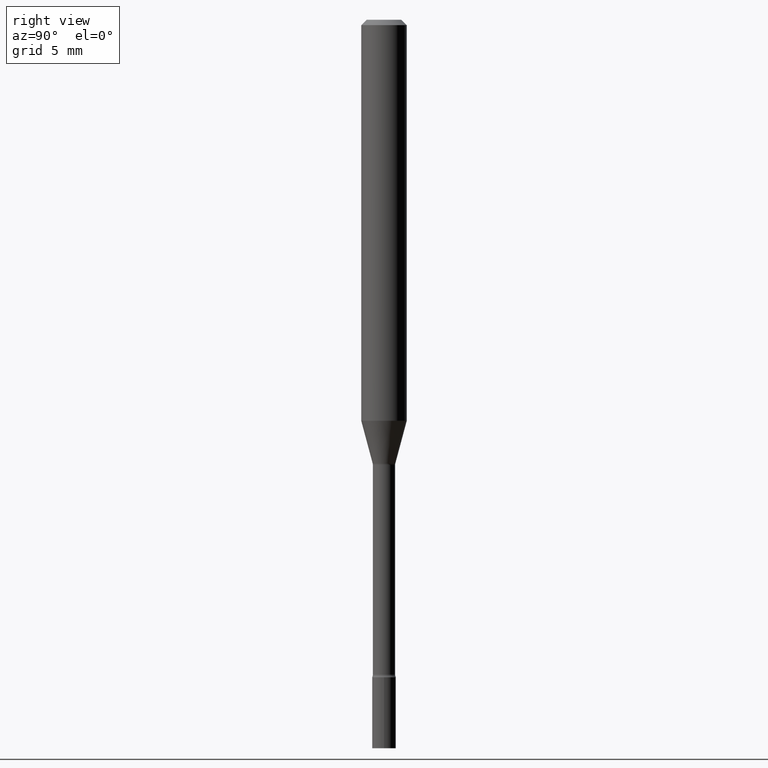
[diagram: clean part render]
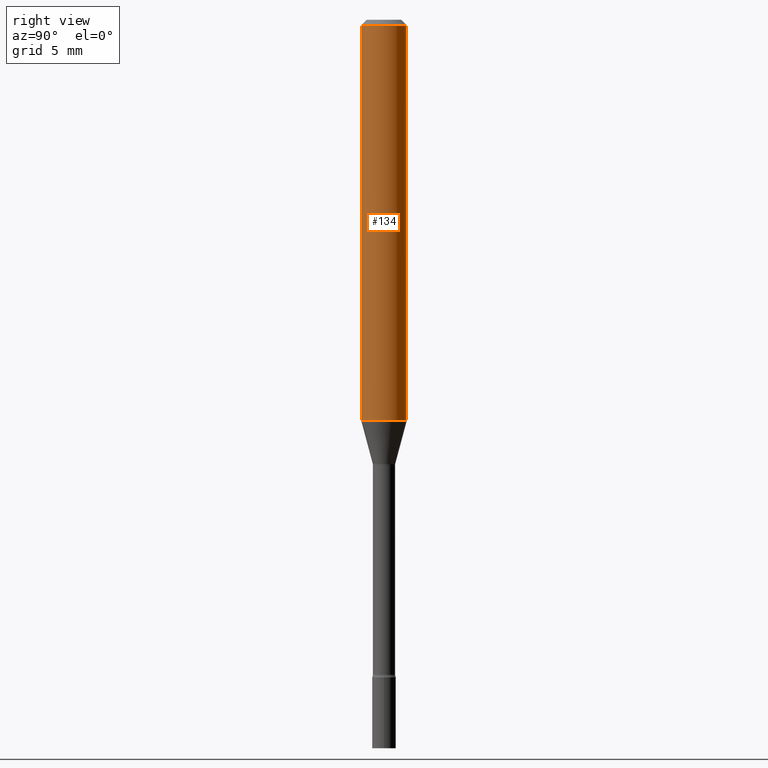
[diagram: same view with one face highlighted and labeled with its STEP entity id]
A machine part, right view. The second image highlights one B-rep face of the part: STEP entity #134.
In plain terms, the highlighted cylindrical surface (edge-blend (fillet) strip) has radius 1.5875 mm, axis along (-0, 0, 1).
Its self-contained STEP definition (entity closure, byte-faithful):
#14 = VERTEX_POINT ( 'NONE', #334 ) ;
#18 = EDGE_CURVE ( 'NONE', #194, #268, #387, .T. ) ;
#20 = AXIS2_PLACEMENT_3D ( 'NONE', #136, #445, #81 ) ;
#25 = DIRECTION ( 'NONE',  ( -2.445806492688777345E-29, 3.490997752550010367E-15, 1.000000000000000000 ) ) ;
#31 = EDGE_CURVE ( 'NONE', #194, #360, #96, .T. ) ;
#58 = CARTESIAN_POINT ( 'NONE',  ( -4.364351673553916201E-16, -0.06250000000000000000, 2.181873595343755987E-16 ) ) ;
#68 = ORIENTED_EDGE ( 'NONE', *, *, #31, .T. ) ;
#81 = DIRECTION ( 'NONE',  ( -6.982962677686265922E-15, -1.000000000000000000, 4.370956789862821150E-15 ) ) ;
#87 = ORIENTED_EDGE ( 'NONE', *, *, #274, .T. ) ;
#91 = DIRECTION ( 'NONE',  ( -6.982962677686265922E-15, -1.000000000000000000, 3.483106191921935554E-15 ) ) ;
#96 = CIRCLE ( 'NONE', #20, 0.06250000000000000000 ) ;
#134 = ADVANCED_FACE ( 'NONE', ( #164 ), #198, .T. ) ;
#136 = CARTESIAN_POINT ( 'NONE',  ( 2.692248343706835071E-29, -3.842754095748081161E-15, -1.100760976698174520 ) ) ;
#137 = CARTESIAN_POINT ( 'NONE',  ( 4.440892098500625669E-16, 0.06250000000000000000, -2.181873595343755987E-16 ) ) ;
#142 = CARTESIAN_POINT ( 'NONE',  ( -4.364351673553912750E-16, -0.06250000000000005551, -0.01499999999999981209 ) ) ;
#151 = VECTOR ( 'NONE', #25, 39.37007874015748143 ) ;
#155 = DIRECTION ( 'NONE',  ( -2.445806492688777345E-29, 3.490997752550009973E-15, 1.000000000000000000 ) ) ;
#164 = FACE_OUTER_BOUND ( 'NONE', #215, .T. ) ;
#165 = ORIENTED_EDGE ( 'NONE', *, *, #247, .F. ) ;
#194 = VERTEX_POINT ( 'NONE', #300 ) ;
#198 = CYLINDRICAL_SURFACE ( 'NONE', #497, 0.06250000000000000000 ) ;
#215 = EDGE_LOOP ( 'NONE', ( #68, #87, #165, #217 ) ) ;
#217 = ORIENTED_EDGE ( 'NONE', *, *, #18, .F. ) ;
#247 = EDGE_CURVE ( 'NONE', #268, #14, #282, .T. ) ;
#267 = CARTESIAN_POINT ( 'NONE',  ( 3.668709739033173181E-31, -5.236496628825025190E-17, -0.01500000000000003067 ) ) ;
#268 = VERTEX_POINT ( 'NONE', #142 ) ;
#274 = EDGE_CURVE ( 'NONE', #360, #14, #304, .T. ) ;
#276 = CARTESIAN_POINT ( 'NONE',  ( 4.440892098500895360E-16, 0.06249999999999617667, -1.100760976698174742 ) ) ;
#278 = CARTESIAN_POINT ( 'NONE',  ( 0.000000000000000000, 0.000000000000000000, 0.000000000000000000 ) ) ;
#282 = CIRCLE ( 'NONE', #346, 0.06250000000000000000 ) ;
#300 = CARTESIAN_POINT ( 'NONE',  ( -4.364351673553646016E-16, -0.06250000000000383027, -1.100760976698174298 ) ) ;
#304 = LINE ( 'NONE', #137, #467 ) ;
#334 = CARTESIAN_POINT ( 'NONE',  ( 4.440892098500897333E-16, 0.06249999999999995837, -0.01500000000000024751 ) ) ;
#346 = AXIS2_PLACEMENT_3D ( 'NONE', #267, #430, #91 ) ;
#360 = VERTEX_POINT ( 'NONE', #276 ) ;
#387 = LINE ( 'NONE', #58, #151 ) ;
#430 = DIRECTION ( 'NONE',  ( -2.445806492688777345E-29, 3.490997752550009973E-15, 1.000000000000000000 ) ) ;
#445 = DIRECTION ( 'NONE',  ( -2.445806492688777345E-29, 3.490997752550009973E-15, 1.000000000000000000 ) ) ;
#465 = DIRECTION ( 'NONE',  ( -2.445806492688777345E-29, 3.490997752550010367E-15, 1.000000000000000000 ) ) ;
#467 = VECTOR ( 'NONE', #465, 39.37007874015748143 ) ;
#480 = DIRECTION ( 'NONE',  ( -6.982962677686265922E-15, -1.000000000000000000, 3.490997752550009579E-15 ) ) ;
#497 = AXIS2_PLACEMENT_3D ( 'NONE', #278, #155, #480 ) ;